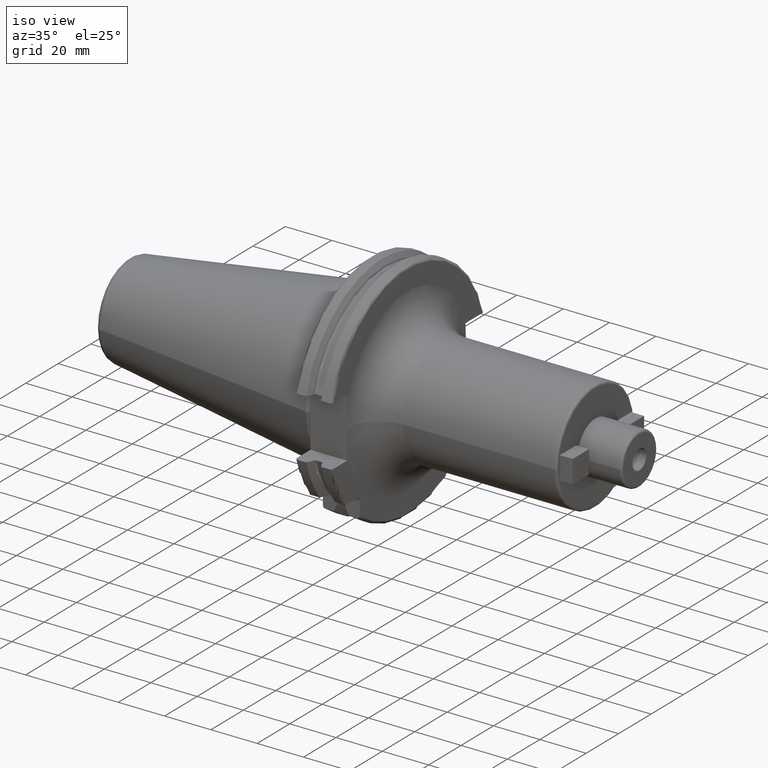
[diagram: clean part render]
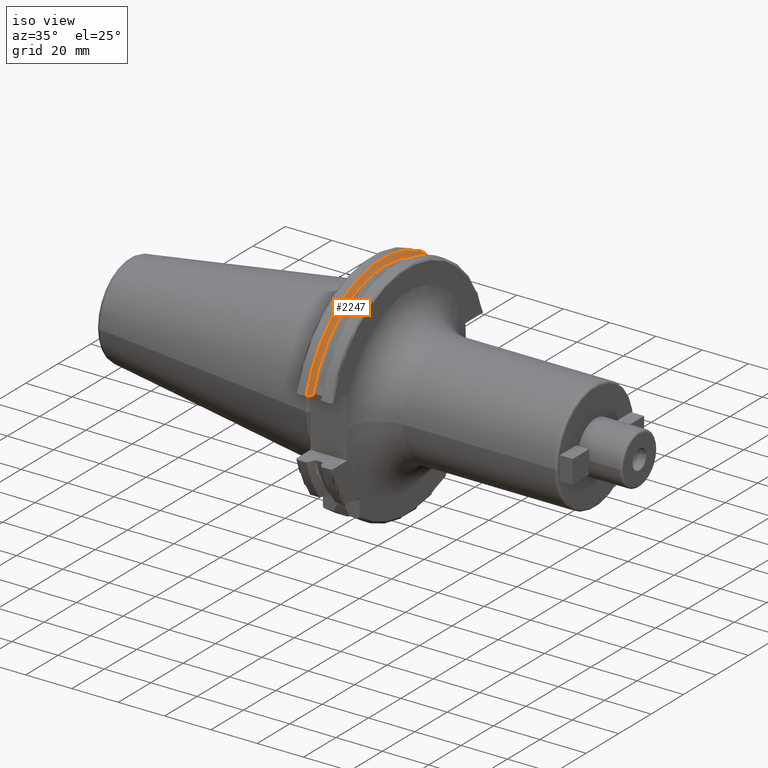
[diagram: same view with one face highlighted and labeled with its STEP entity id]
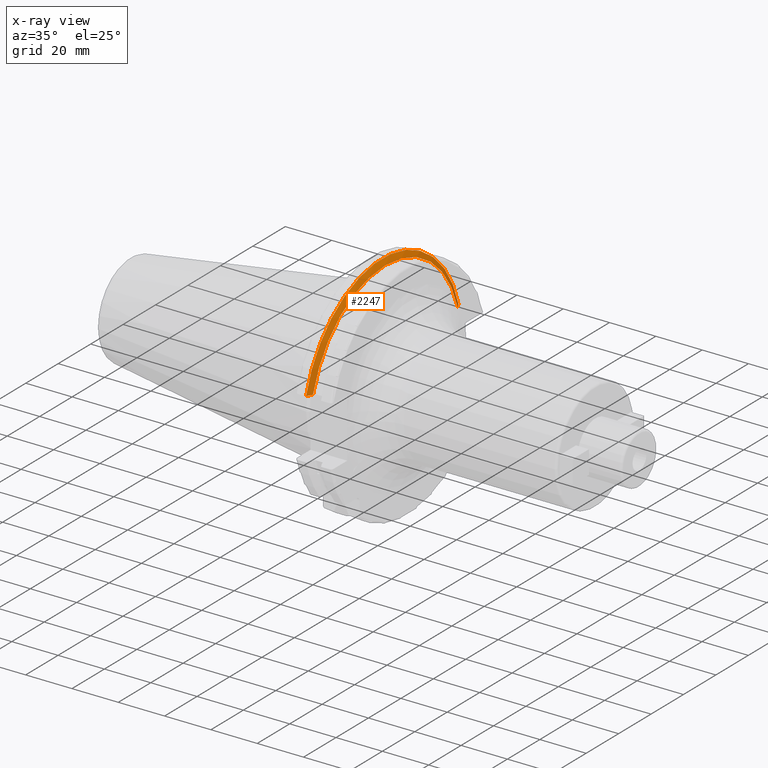
[diagram: x-ray of the same camera — body ghosted, the highlighted face saturated]
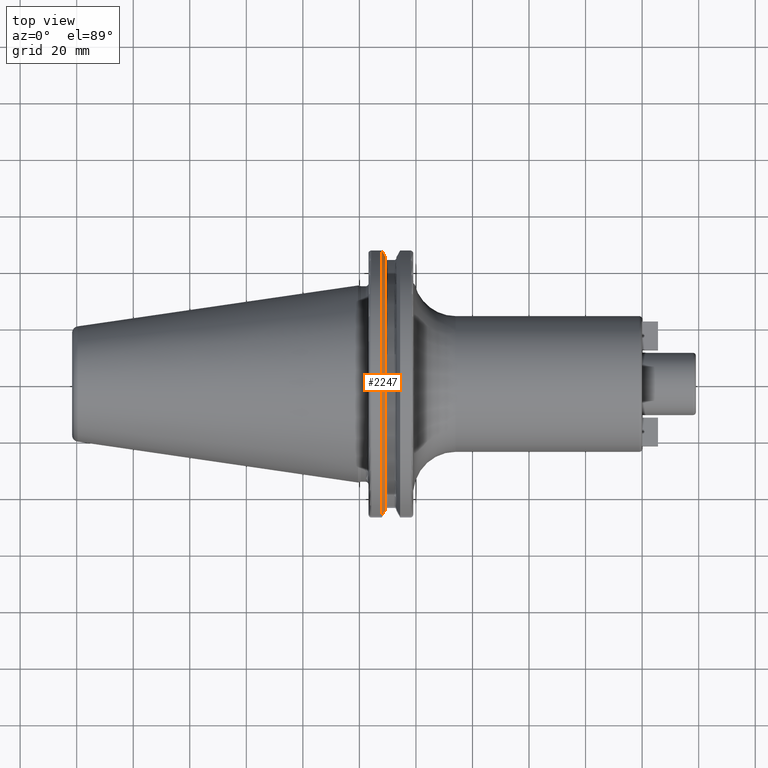
[diagram: same view with one face highlighted and labeled with its STEP entity id]
A machine part, iso view. The second image highlights one B-rep face of the part: STEP entity #2247.
The next image is the same camera in x-ray: the body ghosted, the highlighted face saturated — about 0% of this face is hidden behind the body in this view.
A second angle (top view) of the same face is appended — the face is thin or edge-on in the first view.
In plain terms, the highlighted conical surface has half-angle 60 deg.
Its self-contained STEP definition (entity closure, byte-faithful):
#269=CARTESIAN_POINT('',(9.2625E0,0.E0,0.E0));
#270=DIRECTION('',(1.E0,0.E0,0.E0));
#271=DIRECTION('',(0.E0,9.606411165078E-1,2.777924499957E-1));
#272=AXIS2_PLACEMENT_3D('',#269,#270,#271);
#429=CARTESIAN_POINT('',(7.934621614173E0,0.E0,0.E0));
#430=DIRECTION('',(1.E0,0.E0,0.E0));
#431=DIRECTION('',(0.E0,9.643354064066E-1,2.646832521159E-1));
#432=AXIS2_PLACEMENT_3D('',#429,#430,#431);
#456=CARTESIAN_POINT('',(7.934621614173E0,4.699929686974E1,1.29E1));
#457=CARTESIAN_POINT('',(8.085480915039E0,4.672833723043E1,1.29E1));
#458=CARTESIAN_POINT('',(8.384988643814E0,4.619006057422E1,1.29E1));
#459=CARTESIAN_POINT('',(8.827579780447E0,4.539363402665E1,1.29E1));
#460=CARTESIAN_POINT('',(9.118260754177E0,4.486988275438E1,1.29E1));
#461=CARTESIAN_POINT('',(9.2625E0,4.460981716077E1,1.29E1));
#463=CARTESIAN_POINT('',(9.2625E0,-4.460981716077E1,1.29E1));
#464=CARTESIAN_POINT('',(9.118283773553E0,-4.486984125009E1,1.29E1));
#465=CARTESIAN_POINT('',(8.827633549554E0,-4.539353719098E1,1.29E1));
#466=CARTESIAN_POINT('',(8.385043355543E0,-4.618996220278E1,1.29E1));
#467=CARTESIAN_POINT('',(8.085504386120E0,-4.672829507383E1,1.29E1));
#468=CARTESIAN_POINT('',(7.934621614173E0,-4.699929686974E1,1.29E1));
#1456=CARTESIAN_POINT('',(9.2625E0,4.460981716077E1,1.29E1));
#1458=VERTEX_POINT('',#1456);
#1468=CARTESIAN_POINT('',(9.2625E0,-4.460981716077E1,1.29E1));
#1470=VERTEX_POINT('',#1468);
#1494=VERTEX_POINT('',#456);
#1495=VERTEX_POINT('',#468);
#2236=CARTESIAN_POINT('',(8.598560807087E0,0.E0,0.E0));
#2237=DIRECTION('',(-1.E0,0.E0,0.E0));
#2238=DIRECTION('',(0.E0,1.E0,0.E0));
#2239=AXIS2_PLACEMENT_3D('',#2236,#2237,#2238);
#2240=CONICAL_SURFACE('',#2239,4.758752358474E1,6.E1);
#2241=ORIENTED_EDGE('',*,*,#2011,.T.);
#2242=ORIENTED_EDGE('',*,*,#2078,.T.);
#2243=ORIENTED_EDGE('',*,*,#2064,.T.);
#2244=ORIENTED_EDGE('',*,*,#2216,.F.);
#2245=EDGE_LOOP('',(#2241,#2242,#2243,#2244));
#2246=FACE_OUTER_BOUND('',#2245,.F.);
#2247=ADVANCED_FACE('',(#2246),#2240,.T.);
#273=CIRCLE('',#272,4.643754716948E1);
#433=CIRCLE('',#432,4.87375E1);
#462=B_SPLINE_CURVE_WITH_KNOTS('',3,(#456,#457,#458,#459,#460,#461),
.UNSPECIFIED.,.F.,.F.,(4,1,1,4),(0.E0,3.333333333333E-1,6.666666666667E-1,1.E0),
.UNSPECIFIED.);
#469=B_SPLINE_CURVE_WITH_KNOTS('',3,(#463,#464,#465,#466,#467,#468),
.UNSPECIFIED.,.F.,.F.,(4,1,1,4),(0.E0,3.333333333333E-1,6.666666666667E-1,1.E0),
.UNSPECIFIED.);
#2011=EDGE_CURVE('',#1494,#1458,#462,.T.);
#2064=EDGE_CURVE('',#1470,#1495,#469,.T.);
#2078=EDGE_CURVE('',#1458,#1470,#273,.T.);
#2216=EDGE_CURVE('',#1494,#1495,#433,.T.);